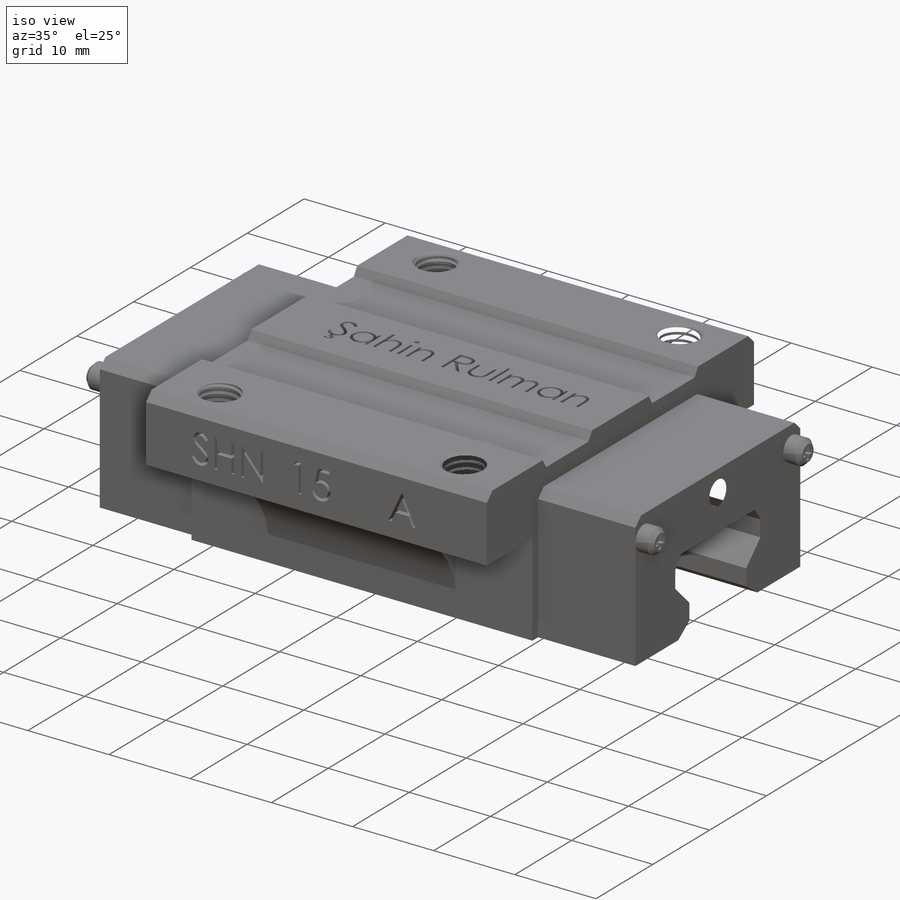
[diagram: iso view]
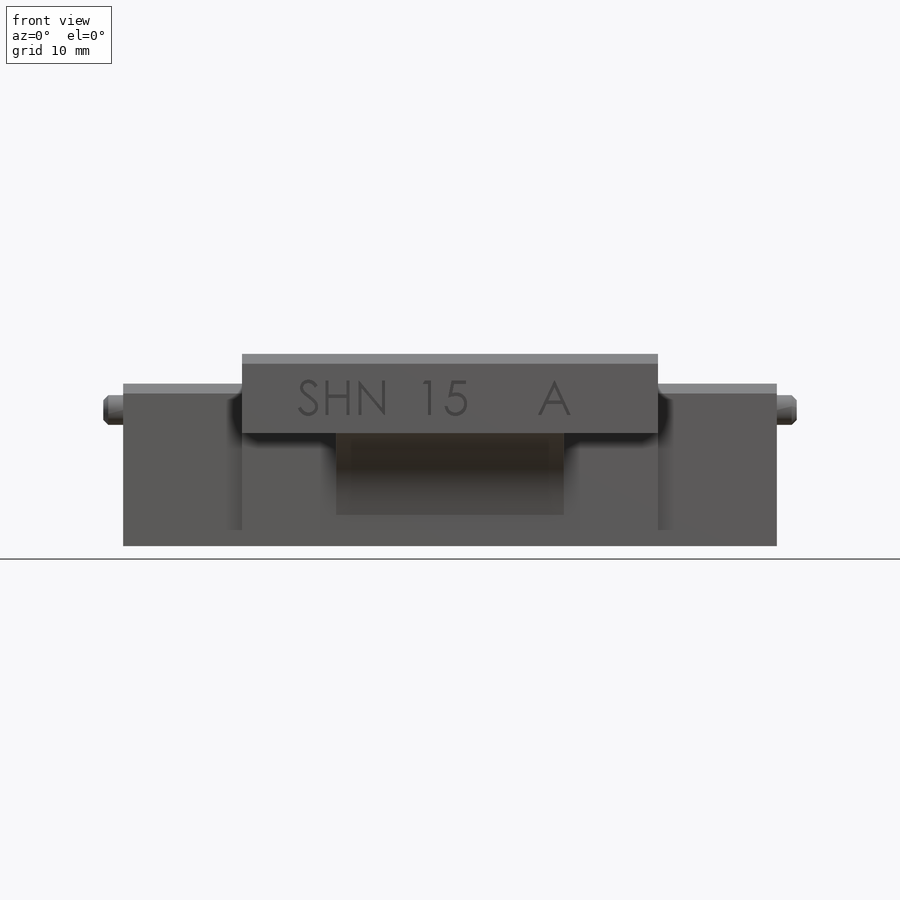
[diagram: front view]
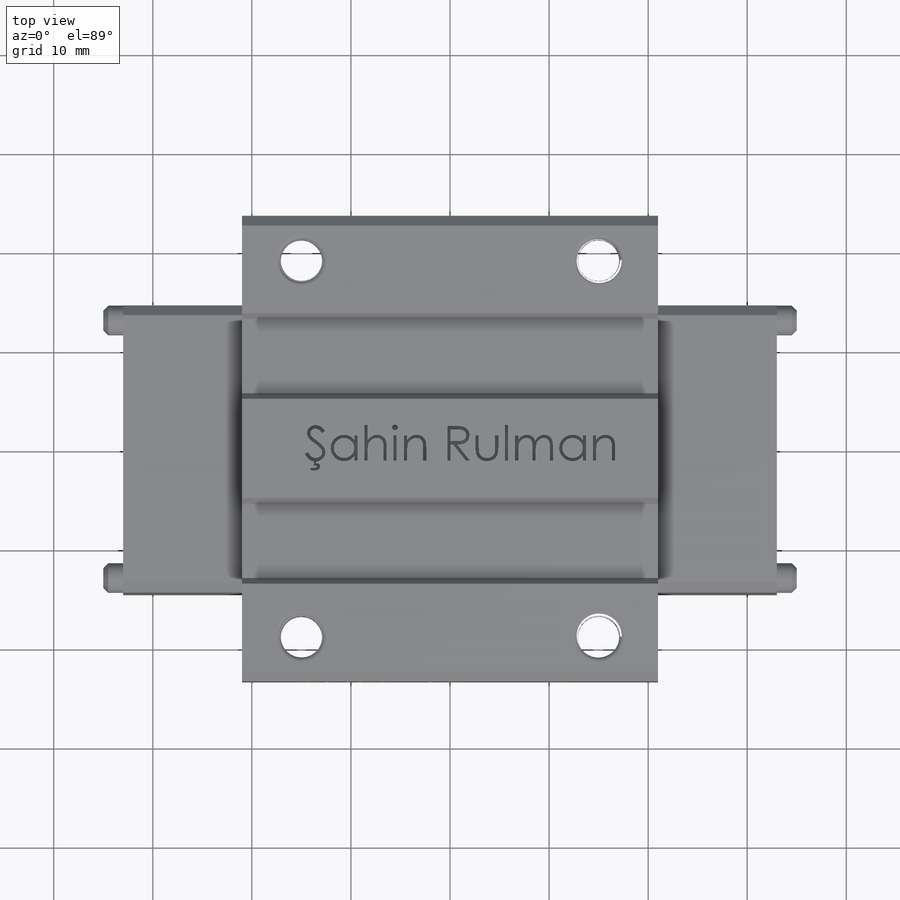
[diagram: top view]
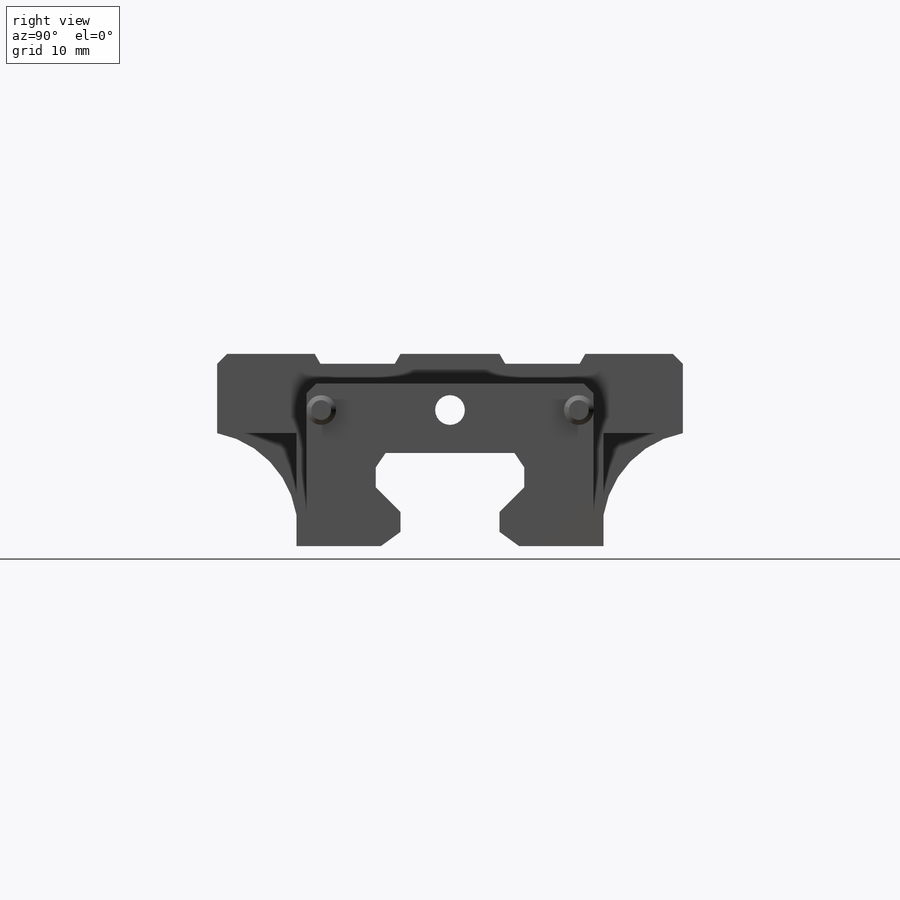
[diagram: right view]
SOLIDWORKS PART (.sldprt)
format: sldprt  version: not decoded by parser v0  size: 1,819,136 bytes
history: native  units: mm
features: sketch x12, cut_extrude x6, mirror x6, extrude x4, chamfer x3, material x1, fillet x1, helix x1, plane x1, sweep x1 (+11 scaffold rows collapsed)
feature tree (47):
  scaffold x11  (default folders/planes/origin — collapsed)
  material  "Material <not specified>"
  sketch  "Sketch1"  dims[c1.D12=~6.267332mm c1.D1=47.0mm c1.D2=23.5mm c1.D5=1.0mm c1.D6=1.0mm c1.D7=3.5mm c1.D8=~1.093203mm c2.D8=120.0deg c2.D9=7.006mm c3.D9=120.0deg c3.D10=7.5mm c3.D3=8.0mm c3.D11=3.5mm c3.D12=16.0mm c3.D14=7.5mm c3.D2=47.0mm c3.D7=15.0mm c4.D11=16.0mm c4.D14=47.0mm c4.D3=5.0mm c4.D4=5.0mm c4.D5=10.0mm c5.D4=19.0mm c5.D11=24.0mm c6.D4=4.6mm c6.D11=19.0mm c6.D14=1.0mm]
  extrude  "Boss-Extrude1"  Depth=42mm
  sketch  "Sketch5"  dims[c1.D1=1.0mm c1.D2=1.0mm c1.D3=~1.150086mm c1.D4=90.0deg c2.D2=1.0mm c2.D3=3.0mm]
  extrude  "Boss-Extrude2"  Depth=12mm
  sketch  "Sketch6"  dims[D5=4.2mm D1=15.0mm D2=15.0mm D3=19.0mm D4=19.0mm]
  cut_extrude  "Cut-Extrude2"  Depth=44mm
  sketch  "Sketch8"  dims[D1=10.0mm]
  extrude  "Boss-Extrude4"  Depth=23mm
  mirror  "Mirror1"
  sketch  "Sketch10"  dims[c1.D1=14.0mm c1.D2=4.6mm c1.D3=15.0mm c1.D4=15.0mm c1.D5=1.0mm c1.D6=1.0mm c1.D7=5.0mm c1.D8=2.0mm c1.D9=2.5mm c2.D9=135.0deg c2.D10=2.5mm c3.D10=126.0deg c3.D11=2.5mm c4.D11=234.0deg c5.D11=2.0mm c5.D12=2.0mm]
  cut_extrude  "Cut-Extrude3"  Depth=240mm
  chamfer  "Chamfer3"  Distance=0.5mm Angle=45deg
  chamfer  "Chamfer4"  Distance=1mm Angle=45deg
  sketch  "Sketch11"  dims[D1=3.0mm D2=3.0mm]
  extrude  "Boss-Extrude6"  Depth=2mm
  chamfer  "Chamfer5"  Distance=0.5mm Angle=45deg
  sketch  "Sketch12"  dims[c1.D1=0.5mm c1.D2=0.25mm c1.D3=1.5mm c1.D4=0.75mm c1.D5=0.75mm c1.D6=1.5mm c1.D7=0.75mm c1.D8=0.5mm c1.D9=0.25mm c1.D10=0.375mm c2.D9=0.25mm]
  cut_extrude  "Cut-Extrude4"  Depth=1mm
  mirror  "Mirror2"
  mirror  "Mirror3"
  sketch  "Sketch13"
  cut_extrude  "Cut-Extrude5"  Depth=1mm
  sketch  "Sketch14"
  cut_extrude  "Cut-Extrude6"  Depth=1mm
  fillet  "Fillet1"  Radius=0.5mm
  sketch  "Sketch15"
  helix  "Helix/Spiral1"  Pitch=9.2mm
  plane  "Plane1"
  sketch  "Sketch16"  dims[D1=0.5mm]
  sweep  "Cut-Sweep1"
  mirror  "Mirror4"
  mirror  "Mirror5"
  sketch  "Sketch17"  dims[D1=3.0mm]
  cut_extrude  "Cut-Extrude7"  Depth=10mm
  mirror  "Mirror6"
decode coverage: 24 of 34 modeling features carry decoded parameters
note: ~ marks probable driven/reference dimensions
note: suppression state not decoded; provenance and decode notes live in map.json
